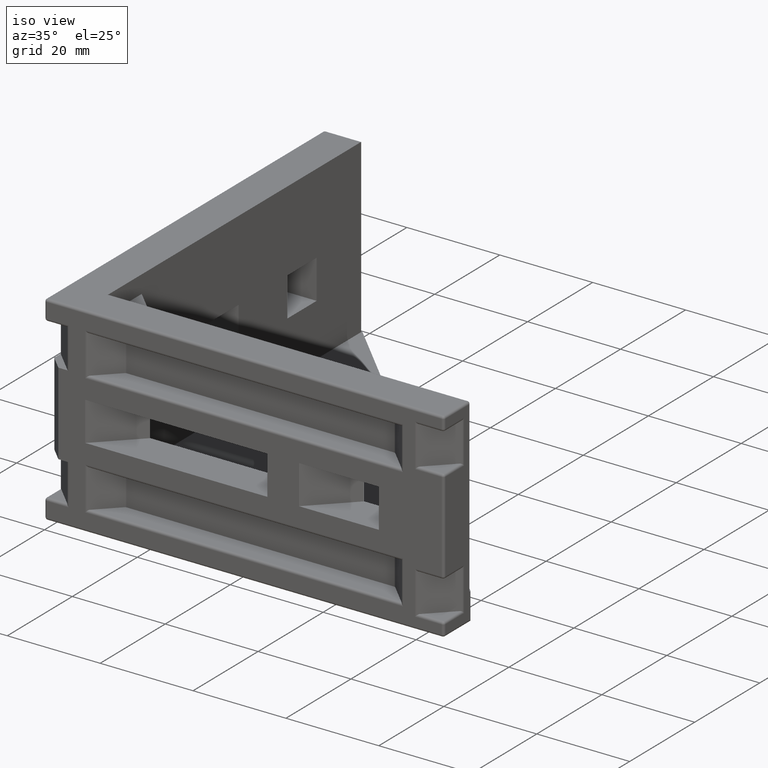
[diagram: clean part render]
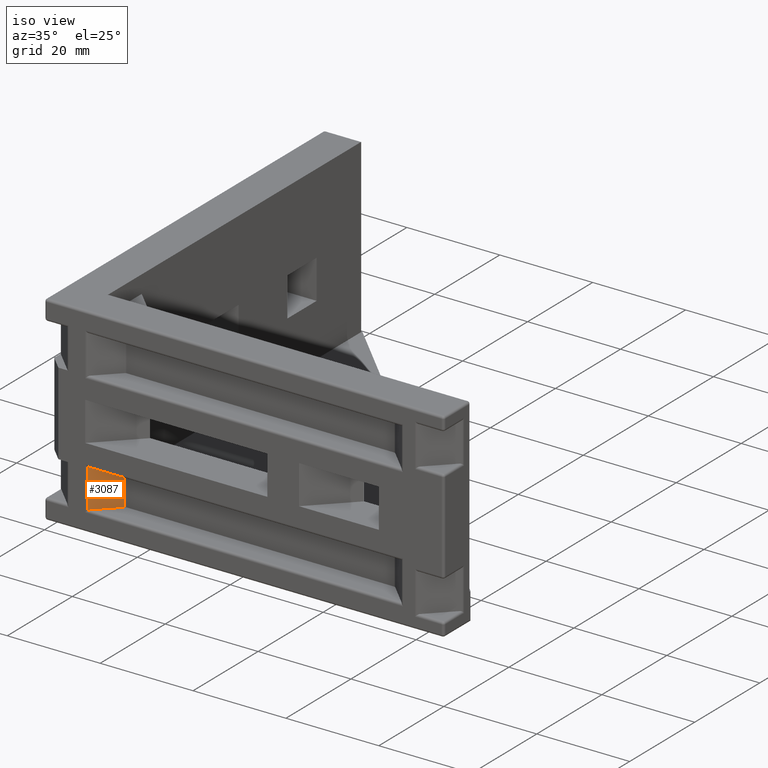
[diagram: same view with one face highlighted and labeled with its STEP entity id]
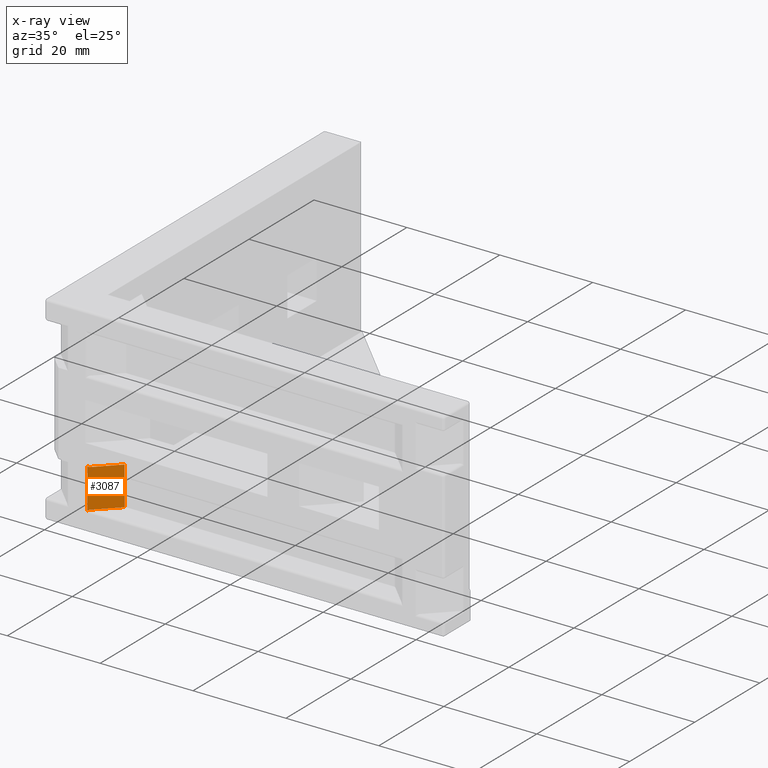
[diagram: x-ray of the same camera — body ghosted, the highlighted face saturated]
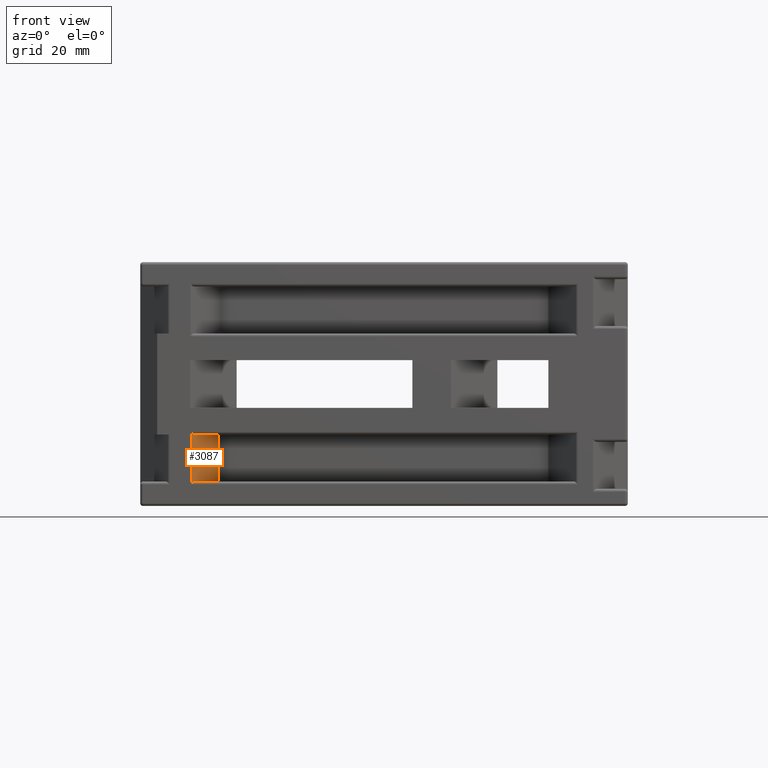
[diagram: same view with one face highlighted and labeled with its STEP entity id]
A machine part, iso view. The second image highlights one B-rep face of the part: STEP entity #3087.
The next image is the same camera in x-ray: the body ghosted, the highlighted face saturated — about 0% of this face is hidden behind the body in this view.
A second angle (front view) of the same face is appended — the face is thin or edge-on in the first view.
In plain terms, the highlighted planar face has unit normal (0.7071, -0.7071, 0).
Its self-contained STEP definition (entity closure, byte-faithful):
#53=ELLIPSE('',#3246,0.707106781186549,0.5);
#54=ELLIPSE('',#3248,0.707106781186549,0.5);
#164=PLANE('',#3454);
#343=FACE_OUTER_BOUND('',#534,.T.);
#534=EDGE_LOOP('',(#2680,#2681,#2682,#2683,#2684,#2685));
#665=LINE('',#4749,#948);
#670=LINE('',#4762,#953);
#677=LINE('',#4786,#960);
#682=LINE('',#4803,#965);
#948=VECTOR('',#3761,10.);
#953=VECTOR('',#3772,10.);
#960=VECTOR('',#3795,10.);
#965=VECTOR('',#3818,10.);
#1324=VERTEX_POINT('',#4745);
#1326=VERTEX_POINT('',#4748);
#1331=VERTEX_POINT('',#4760);
#1339=VERTEX_POINT('',#4783);
#1340=VERTEX_POINT('',#4785);
#1343=VERTEX_POINT('',#4799);
#1644=EDGE_CURVE('',#1324,#1326,#665,.T.);
#1651=EDGE_CURVE('',#1331,#1324,#670,.T.);
#1662=EDGE_CURVE('',#1339,#1340,#677,.T.);
#1668=EDGE_CURVE('',#1340,#1331,#53,.T.);
#1671=EDGE_CURVE('',#1343,#1339,#54,.T.);
#1672=EDGE_CURVE('',#1343,#1326,#682,.T.);
#2680=ORIENTED_EDGE('',*,*,#1644,.F.);
#2681=ORIENTED_EDGE('',*,*,#1651,.F.);
#2682=ORIENTED_EDGE('',*,*,#1668,.F.);
#2683=ORIENTED_EDGE('',*,*,#1662,.F.);
#2684=ORIENTED_EDGE('',*,*,#1671,.F.);
#2685=ORIENTED_EDGE('',*,*,#1672,.T.);
#3087=ADVANCED_FACE('',(#343),#164,.T.);
#3246=AXIS2_PLACEMENT_3D('',#4796,#3808,#3809);
#3248=AXIS2_PLACEMENT_3D('',#4801,#3814,#3815);
#3454=AXIS2_PLACEMENT_3D('',#5302,#4368,#4369);
#3761=DIRECTION('',(0.,0.,-1.));
#3772=DIRECTION('',(0.707106781186549,0.707106781186546,0.));
#3795=DIRECTION('',(0.,0.,1.));
#3808=DIRECTION('center_axis',(0.707106781186546,-0.707106781186549,0.));
#3809=DIRECTION('ref_axis',(-0.707106781186549,-0.707106781186546,-1.47196168001604E-16));
#3814=DIRECTION('center_axis',(0.707106781186546,-0.707106781186549,0.));
#3815=DIRECTION('ref_axis',(-0.707106781186549,-0.707106781186546,-4.90653893338679E-17));
#3818=DIRECTION('',(0.707106781186549,0.707106781186546,0.));
#4368=DIRECTION('center_axis',(0.707106781186546,-0.707106781186549,0.));
#4369=DIRECTION('ref_axis',(0.707106781186549,0.707106781186546,0.));
#4745=CARTESIAN_POINT('',(13.8535533905933,4.85355339059328,-8.9));
#4748=CARTESIAN_POINT('',(13.8535533905933,4.85355339059328,-17.2));
#4749=CARTESIAN_POINT('',(13.8535533905933,4.85355339059328,-17.2));
#4760=CARTESIAN_POINT('',(9.49999999999999,0.5,-8.9));
#4762=CARTESIAN_POINT('',(8.99999999999999,0.,-8.9));
#4783=CARTESIAN_POINT('',(9.14644660940671,0.146446609406726,-17.3464466094067));
#4785=CARTESIAN_POINT('',(9.14644660940671,0.146446609406726,-8.75355339059327));
#4786=CARTESIAN_POINT('',(9.14644660940671,0.146446609406726,-8.6));
#4796=CARTESIAN_POINT('Origin',(9.49999999999999,0.5,-8.4));
#4799=CARTESIAN_POINT('',(9.49999999999999,0.500000000000001,-17.2));
#4801=CARTESIAN_POINT('Origin',(9.49999999999999,0.500000000000001,-17.7));
#4803=CARTESIAN_POINT('',(8.99999999999999,0.,-17.2));
#5302=CARTESIAN_POINT('Origin',(8.99999999999999,0.,-17.2));